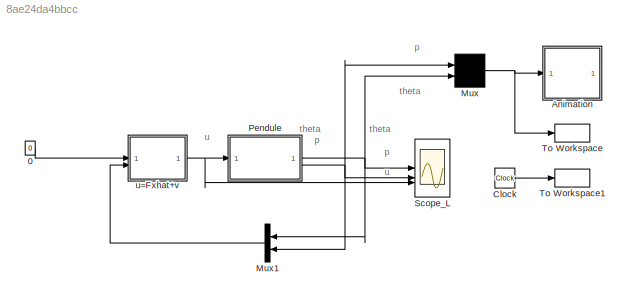
MODEL slx_8ae24da4bbcc
KIND model
CONFIG AbsTol = 1e-6
CONFIG EnableMultiTasking = off
CONFIG FixedStep = .005
CONFIG MaxStep = 0.02
CONFIG MinStep = auto
CONFIG RelTol = 1e-3
CONFIG SampleTimeConstraint = Unconstrained
CONFIG SolverName = ode5
CONFIG StartTime = 0
CONFIG StopTime = 12
BLOCK [Constant] 0
  Value = 0
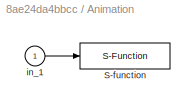
BLOCK [SubSystem] Animation
BLOCK [S-Function] Animation/S-function
  DeleteFcn = pendan([],[],[],'DeleteBlock');
  EnableBusSupport = off
  FunctionName = tp_pendan_g
  SFcnIsStateOwnerBlock = off
  SFunctionDeploymentMode = off
BLOCK [Inport] Animation/in_1
BLOCK [Clock] Clock
BLOCK [Mux] Mux
  Inputs = 2
BLOCK [Mux] Mux1
  DisplayOption = bar
  Inputs = 2
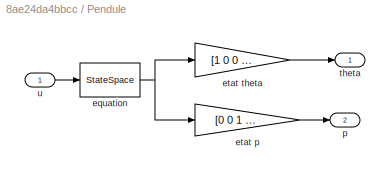
BLOCK [SubSystem] Pendule
  NameLocation = top
BLOCK [StateSpace] Pendule/equation
  A = A
  B = B
  C = eye(4)
  D = zeros(4,1)
  InitialCondition = x0
BLOCK [Gain] Pendule/etat p
  Gain = [0 0 1 0]
  Multiplication = Matrix(K*u)
  OutDataTypeStr = Inherit: Same as input
  ParamDataTypeStr = Inherit: Same as input
  SaturateOnIntegerOverflow = on
BLOCK [Gain] Pendule/etat theta
  Gain = [1 0 0 0]
  Multiplication = Matrix(K*u)
  OutDataTypeStr = Inherit: Same as input
  ParamDataTypeStr = Inherit: Same as input
  SaturateOnIntegerOverflow = on
BLOCK [Outport] Pendule/p
  Port = 2
BLOCK [Outport] Pendule/theta
BLOCK [Inport] Pendule/u
BLOCK [Scope] Scope_L
  Floating = off
  NumInputPorts = 3
  ScopeSpecificationString = C++SS(StrPVP('Location','[802, 60, 1166, 344]'),StrPVP('Open','off'),StrPVP('TickLabels','on'),MxPVP('AxesTitles',54,'struct(''axes1'',''%<SignalLabel>'',''axes2'',''%<SignalLabel>'',''axes3'',''%<SignalLabel>'')'),StrPVP('ShowLegends','off'),StrPVP('YMin','-0.025~-0.3~-1.5'),StrPVP('YMax','0.005~0.1~0.25'),StrPVP('SaveToWorkspace','on'),StrPVP('SaveName','ys_L'),StrPVP('DataFormat','StructureWith...<+137ch>
BLOCK [ToWorkspace] To Workspace
  SampleTime = 0.1
  VariableName = y
BLOCK [ToWorkspace] To Workspace1
  SampleTime = 0.1
  VariableName = t
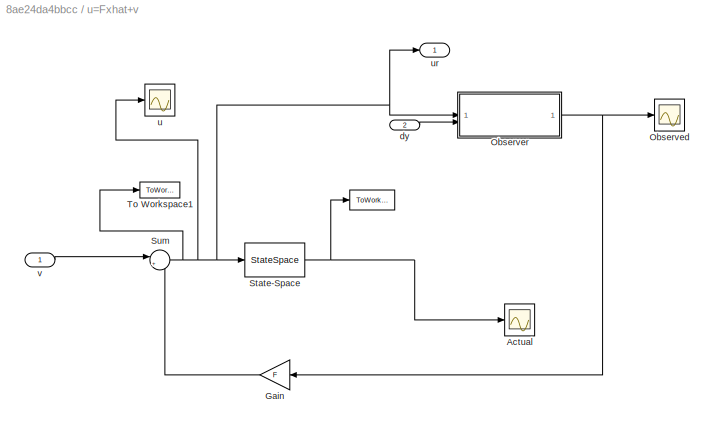
BLOCK [SubSystem] u=Fxhat+v
BLOCK [ToWorkspace] u=Fxhat+v/  
  FixptAsFi = on
  MaxDataPoints = inf
  SampleTime = -1
  Save2DSignal = 2-D array (concatenate along first dimension)
  VariableName = x
BLOCK [Scope] u=Fxhat+v/Actual
  Floating = off
  NumInputPorts = 1
  ScopeSpecificationString = Simulink.scopes.TimeScopeBlockCfg('CurrentConfiguration', extmgr.ConfigurationSet(extmgr.Configuration('Core','General UI',true),extmgr.Configuration('Core','Source UI',true),extmgr.Configuration('Sources','WiredSimulink',true,'DataLoggingVariableName','ScopeData1'),extmgr.Configuration('Visuals','Time Domain',true,'SerializedDisplays',{struct('MinYLimReal','-1.33292','MaxYLimReal','1.08065','YLab...<+1460ch>
BLOCK [Gain] u=Fxhat+v/Gain
  Gain = F
  Multiplication = Matrix(K*u)
  NameLocation = top
BLOCK [Scope] u=Fxhat+v/Observed
  Floating = off
  NumInputPorts = 1
  ScopeSpecificationString = Simulink.scopes.TimeScopeBlockCfg('CurrentConfiguration', extmgr.ConfigurationSet(extmgr.Configuration('Core','General UI',true),extmgr.Configuration('Core','Source UI',true),extmgr.Configuration('Sources','WiredSimulink',true,'DataLoggingVariableName','ScopeData2'),extmgr.Configuration('Visuals','Time Domain',true,'SerializedDisplays',{struct('MinYLimReal','-1.31329','MaxYLimReal','1.15147','YLab...<+1461ch>
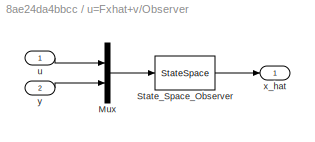
BLOCK [SubSystem] u=Fxhat+v/Observer
BLOCK [Mux] u=Fxhat+v/Observer/Mux
  DisplayOption = bar
  Inputs = 2
BLOCK [StateSpace] u=Fxhat+v/Observer/State_Space_Observer
  A = A-K*C
  B = [B K]
  C = eye(4)
  D = zeros(4,3)
  InitialCondition = 0
BLOCK [Inport] u=Fxhat+v/Observer/u
BLOCK [Outport] u=Fxhat+v/Observer/x_hat
BLOCK [Inport] u=Fxhat+v/Observer/y
  Port = 2
BLOCK [StateSpace] u=Fxhat+v/State-Space
  A = A
  B = B
  C = eye(4)
  D = D
  InitialCondition = x_0
  ParameterTunability = Unconstrained
BLOCK [Sum] u=Fxhat+v/Sum
  Inputs = |++
BLOCK [ToWorkspace] u=Fxhat+v/To Workspace1
  FixptAsFi = on
  MaxDataPoints = inf
  SampleTime = -1
  Save2DSignal = 2-D array (concatenate along first dimension)
  VariableName = u
BLOCK [Inport] u=Fxhat+v/dy
  Port = 2
BLOCK [Scope] u=Fxhat+v/u
  Floating = off
  NumInputPorts = 1
  ScopeSpecificationString = Simulink.scopes.TimeScopeBlockCfg('CurrentConfiguration', extmgr.ConfigurationSet(extmgr.Configuration('Core','General UI',true),extmgr.Configuration('Core','Source UI',true),extmgr.Configuration('Sources','WiredSimulink',true,'DataLoggingVariableName','ScopeData3'),extmgr.Configuration('Visuals','Time Domain',true,'SerializedDisplays',{struct('MinYLimReal','-16.73067','MaxYLimReal','14.62151','YL...<+1436ch>
BLOCK [Outport] u=Fxhat+v/ur
BLOCK [Inport] u=Fxhat+v/v
ANNOTATION (root): p
ANNOTATION (root): theta
ANNOTATION (root): u
LINE 0:1 -> u=Fxhat+v:1
LINE Animation/in_1:1 -> Animation/S-function:1
LINE Clock:1 -> To Workspace1:1
LINE Mux1:1 -> u=Fxhat+v:2
NET Mux:1 -> Animation:1, To Workspace:1
NET Pendule/equation:1 -> Pendule/etat p:1, Pendule/etat theta:1
LINE Pendule/etat p:1 -> Pendule/p:1
LINE Pendule/etat theta:1 -> Pendule/theta:1
LINE Pendule/u:1 -> Pendule/equation:1
NET Pendule:1 -> Mux1:1, Mux:2, Scope_L:1
NET Pendule:2 -> Mux1:2, Mux:1, Scope_L:2
LINE u=Fxhat+v/Gain:1 -> u=Fxhat+v/Sum:2
LINE u=Fxhat+v/Observer/Mux:1 -> u=Fxhat+v/Observer/State_Space_Observer:1
LINE u=Fxhat+v/Observer/State_Space_Observer:1 -> u=Fxhat+v/Observer/x_hat:1
LINE u=Fxhat+v/Observer/u:1 -> u=Fxhat+v/Observer/Mux:1
LINE u=Fxhat+v/Observer/y:1 -> u=Fxhat+v/Observer/Mux:2
NET u=Fxhat+v/Observer:1 -> u=Fxhat+v/Gain:1, u=Fxhat+v/Observed:1
NET u=Fxhat+v/State-Space:1 -> u=Fxhat+v/  :1, u=Fxhat+v/Actual:1
NET u=Fxhat+v/Sum:1 -> u=Fxhat+v/Observer:1, u=Fxhat+v/State-Space:1, u=Fxhat+v/To Workspace1:1, u=Fxhat+v/u:1, u=Fxhat+v/ur:1
LINE u=Fxhat+v/dy:1 -> u=Fxhat+v/Observer:2
LINE u=Fxhat+v/v:1 -> u=Fxhat+v/Sum:1
NET u=Fxhat+v:1 -> Pendule:1, Scope_L:3
note: NET lines group one-source signal fan-out (src -> all destinations, sorted); 1:1 wires keep LINE
